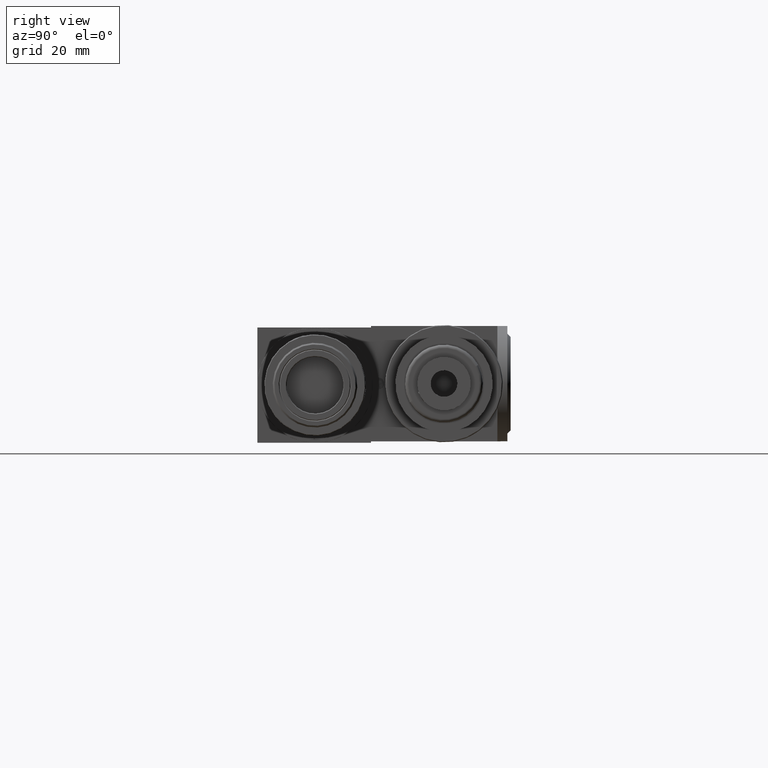
[diagram: clean part render]
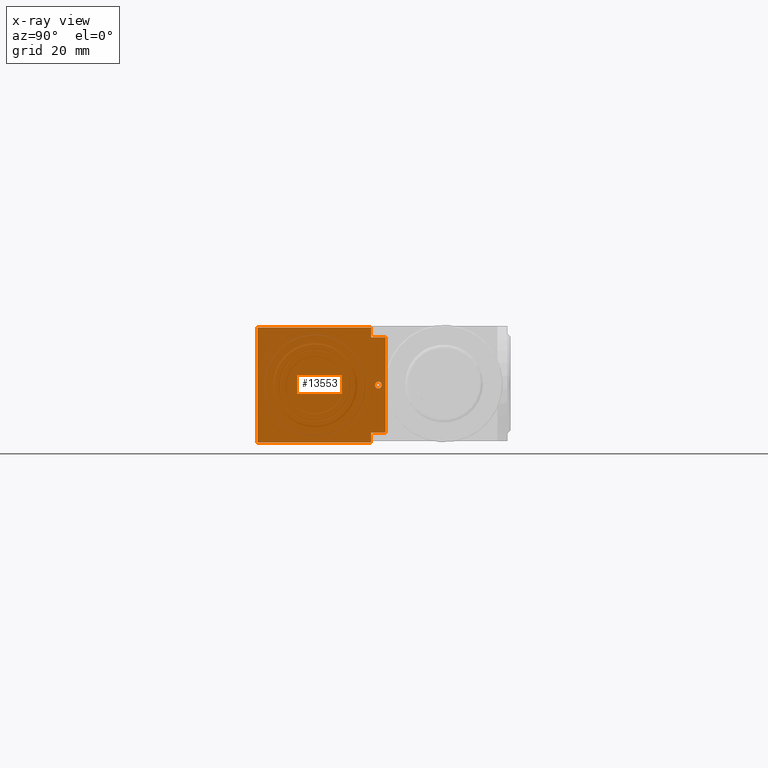
[diagram: x-ray — body ghosted, one internal face saturated and labeled with its STEP entity id]
A machine part, right view, then the same camera in x-ray: the body is ghosted and one INTERNAL B-rep face — a face not visible from any outside direction — is saturated and labeled: STEP entity #13553.
In plain terms, the highlighted planar face has unit normal (-1, 0, 0).
Its self-contained STEP definition (entity closure, byte-faithful):
#134 = ORIENTED_EDGE ( 'NONE', *, *, #2340, .T. ) ;
#729 = VERTEX_POINT ( 'NONE', #9091 ) ;
#878 = VECTOR ( 'NONE', #12749, 1000.000000000000000 ) ;
#969 = CARTESIAN_POINT ( 'NONE',  ( 0.000000000000000000, 19.00000000000000000, -33.00000000000000000 ) ) ;
#1085 = CARTESIAN_POINT ( 'NONE',  ( 0.000000000000000000, 16.80000000000000071, -33.00000000000000000 ) ) ;
#1603 = LINE ( 'NONE', #7827, #11341 ) ;
#1828 = CARTESIAN_POINT ( 'NONE',  ( 14.30000000000000071, 16.80000000000000071, -33.00000000000000000 ) ) ;
#2058 = DIRECTION ( 'NONE',  ( 0.000000000000000000, 0.000000000000000000, -1.000000000000000000 ) ) ;
#2088 = EDGE_CURVE ( 'NONE', #14259, #11412, #14582, .T. ) ;
#2158 = DIRECTION ( 'NONE',  ( 0.000000000000000000, 0.000000000000000000, 1.000000000000000000 ) ) ;
#2208 = ORIENTED_EDGE ( 'NONE', *, *, #7782, .T. ) ;
#2340 = EDGE_CURVE ( 'NONE', #729, #6161, #5346, .T. ) ;
#2375 = ORIENTED_EDGE ( 'NONE', *, *, #15440, .T. ) ;
#2510 = VECTOR ( 'NONE', #4465, 1000.000000000000000 ) ;
#3040 = EDGE_CURVE ( 'NONE', #13062, #729, #1603, .T. ) ;
#3187 = ORIENTED_EDGE ( 'NONE', *, *, #2088, .T. ) ;
#3287 = CARTESIAN_POINT ( 'NONE',  ( -17.30000000000000071, 16.80000000000000071, -33.00000000000000000 ) ) ;
#3319 = FACE_OUTER_BOUND ( 'NONE', #8159, .T. ) ;
#3360 = CIRCLE ( 'NONE', #14658, 1.000000000000000000 ) ;
#3651 = VECTOR ( 'NONE', #12823, 1000.000000000000000 ) ;
#4239 = LINE ( 'NONE', #10219, #4891 ) ;
#4465 = DIRECTION ( 'NONE',  ( 0.000000000000000000, -1.000000000000000000, 0.000000000000000000 ) ) ;
#4501 = CARTESIAN_POINT ( 'NONE',  ( -14.30000000000000071, 0.000000000000000000, -33.00000000000000000 ) ) ;
#4541 = LINE ( 'NONE', #11764, #2510 ) ;
#4891 = VECTOR ( 'NONE', #6906, 1000.000000000000000 ) ;
#5067 = VERTEX_POINT ( 'NONE', #12994 ) ;
#5346 = LINE ( 'NONE', #10142, #5559 ) ;
#5559 = VECTOR ( 'NONE', #14938, 1000.000000000000000 ) ;
#5601 = FACE_BOUND ( 'NONE', #15030, .T. ) ;
#5667 = AXIS2_PLACEMENT_3D ( 'NONE', #11727, #2058, #12668 ) ;
#5689 = VECTOR ( 'NONE', #9247, 1000.000000000000000 ) ;
#6161 = VERTEX_POINT ( 'NONE', #3287 ) ;
#6213 = DIRECTION ( 'NONE',  ( -1.000000000000000000, 0.000000000000000000, 0.000000000000000000 ) ) ;
#6732 = LINE ( 'NONE', #11522, #5689 ) ;
#6880 = EDGE_CURVE ( 'NONE', #11412, #14259, #3360, .T. ) ;
#6906 = DIRECTION ( 'NONE',  ( 1.000000000000000000, 0.000000000000000000, 0.000000000000000000 ) ) ;
#7782 = EDGE_CURVE ( 'NONE', #12467, #13611, #4239, .T. ) ;
#7827 = CARTESIAN_POINT ( 'NONE',  ( 0.000000000000000000, -17.30000000000000071, -33.00000000000000000 ) ) ;
#8124 = CARTESIAN_POINT ( 'NONE',  ( 14.30000000000000071, 21.19999999999999929, -33.00000000000000000 ) ) ;
#8159 = EDGE_LOOP ( 'NONE', ( #13782, #2208, #9166, #2375, #13770, #12923, #134, #12394 ) ) ;
#9091 = CARTESIAN_POINT ( 'NONE',  ( -17.30000000000000071, -17.30000000000000071, -33.00000000000000000 ) ) ;
#9145 = LINE ( 'NONE', #4501, #878 ) ;
#9166 = ORIENTED_EDGE ( 'NONE', *, *, #14391, .T. ) ;
#9247 = DIRECTION ( 'NONE',  ( 0.000000000000000000, -1.000000000000000000, 0.000000000000000000 ) ) ;
#9919 = ORIENTED_EDGE ( 'NONE', *, *, #6880, .T. ) ;
#10142 = CARTESIAN_POINT ( 'NONE',  ( -17.30000000000000071, 0.000000000000000000, -33.00000000000000000 ) ) ;
#10219 = CARTESIAN_POINT ( 'NONE',  ( 0.000000000000000000, 21.19999999999999929, -33.00000000000000000 ) ) ;
#10267 = VERTEX_POINT ( 'NONE', #11716 ) ;
#10395 = PLANE ( 'NONE',  #5667 ) ;
#10514 = EDGE_CURVE ( 'NONE', #6161, #5067, #14242, .T. ) ;
#10573 = DIRECTION ( 'NONE',  ( -1.000000000000000000, 0.000000000000000000, 0.000000000000000000 ) ) ;
#11024 = DIRECTION ( 'NONE',  ( 1.000000000000000000, 0.000000000000000000, 0.000000000000000000 ) ) ;
#11122 = DIRECTION ( 'NONE',  ( -1.000000000000000000, 0.000000000000000000, 0.000000000000000000 ) ) ;
#11197 = VECTOR ( 'NONE', #11024, 1000.000000000000000 ) ;
#11227 = CARTESIAN_POINT ( 'NONE',  ( -14.30000000000000071, 21.19999999999999929, -33.00000000000000000 ) ) ;
#11341 = VECTOR ( 'NONE', #11122, 1000.000000000000000 ) ;
#11412 = VERTEX_POINT ( 'NONE', #14055 ) ;
#11522 = CARTESIAN_POINT ( 'NONE',  ( 14.30000000000000071, 0.000000000000000000, -33.00000000000000000 ) ) ;
#11668 = CARTESIAN_POINT ( 'NONE',  ( 17.30000000000000071, -17.30000000000000071, -33.00000000000000000 ) ) ;
#11716 = CARTESIAN_POINT ( 'NONE',  ( 17.30000000000000071, 16.80000000000000071, -33.00000000000000000 ) ) ;
#11727 = CARTESIAN_POINT ( 'NONE',  ( 0.000000000000000000, 0.000000000000000000, -33.00000000000000000 ) ) ;
#11764 = CARTESIAN_POINT ( 'NONE',  ( 17.30000000000000071, 0.000000000000000000, -33.00000000000000000 ) ) ;
#12045 = LINE ( 'NONE', #14651, #11197 ) ;
#12394 = ORIENTED_EDGE ( 'NONE', *, *, #10514, .T. ) ;
#12467 = VERTEX_POINT ( 'NONE', #11227 ) ;
#12658 = EDGE_CURVE ( 'NONE', #10267, #13062, #4541, .T. ) ;
#12668 = DIRECTION ( 'NONE',  ( 0.000000000000000000, -1.000000000000000000, 0.000000000000000000 ) ) ;
#12749 = DIRECTION ( 'NONE',  ( 0.000000000000000000, 1.000000000000000000, 0.000000000000000000 ) ) ;
#12823 = DIRECTION ( 'NONE',  ( 1.000000000000000000, 0.000000000000000000, 0.000000000000000000 ) ) ;
#12923 = ORIENTED_EDGE ( 'NONE', *, *, #3040, .T. ) ;
#12994 = CARTESIAN_POINT ( 'NONE',  ( -14.30000000000000071, 16.80000000000000071, -33.00000000000000000 ) ) ;
#13062 = VERTEX_POINT ( 'NONE', #11668 ) ;
#13285 = DIRECTION ( 'NONE',  ( 0.000000000000000000, 0.000000000000000000, 1.000000000000000000 ) ) ;
#13369 = CARTESIAN_POINT ( 'NONE',  ( 0.000000000000000000, 19.00000000000000000, -33.00000000000000000 ) ) ;
#13525 = CARTESIAN_POINT ( 'NONE',  ( -1.000000000000000000, 19.00000000000000000, -33.00000000000000000 ) ) ;
#13529 = EDGE_CURVE ( 'NONE', #5067, #12467, #9145, .T. ) ;
#13535 = VERTEX_POINT ( 'NONE', #1828 ) ;
#13553 = ADVANCED_FACE ( 'NONE', ( #5601, #3319 ), #10395, .T. ) ;
#13591 = AXIS2_PLACEMENT_3D ( 'NONE', #13369, #13285, #6213 ) ;
#13611 = VERTEX_POINT ( 'NONE', #8124 ) ;
#13770 = ORIENTED_EDGE ( 'NONE', *, *, #12658, .T. ) ;
#13782 = ORIENTED_EDGE ( 'NONE', *, *, #13529, .T. ) ;
#14055 = CARTESIAN_POINT ( 'NONE',  ( 1.000000000000000000, 19.00000000000000000, -33.00000000000000000 ) ) ;
#14242 = LINE ( 'NONE', #1085, #3651 ) ;
#14259 = VERTEX_POINT ( 'NONE', #13525 ) ;
#14391 = EDGE_CURVE ( 'NONE', #13611, #13535, #6732, .T. ) ;
#14582 = CIRCLE ( 'NONE', #13591, 1.000000000000000000 ) ;
#14651 = CARTESIAN_POINT ( 'NONE',  ( 0.000000000000000000, 16.80000000000000071, -33.00000000000000000 ) ) ;
#14658 = AXIS2_PLACEMENT_3D ( 'NONE', #969, #2158, #10573 ) ;
#14938 = DIRECTION ( 'NONE',  ( 0.000000000000000000, 1.000000000000000000, 0.000000000000000000 ) ) ;
#15030 = EDGE_LOOP ( 'NONE', ( #3187, #9919 ) ) ;
#15440 = EDGE_CURVE ( 'NONE', #13535, #10267, #12045, .T. ) ;